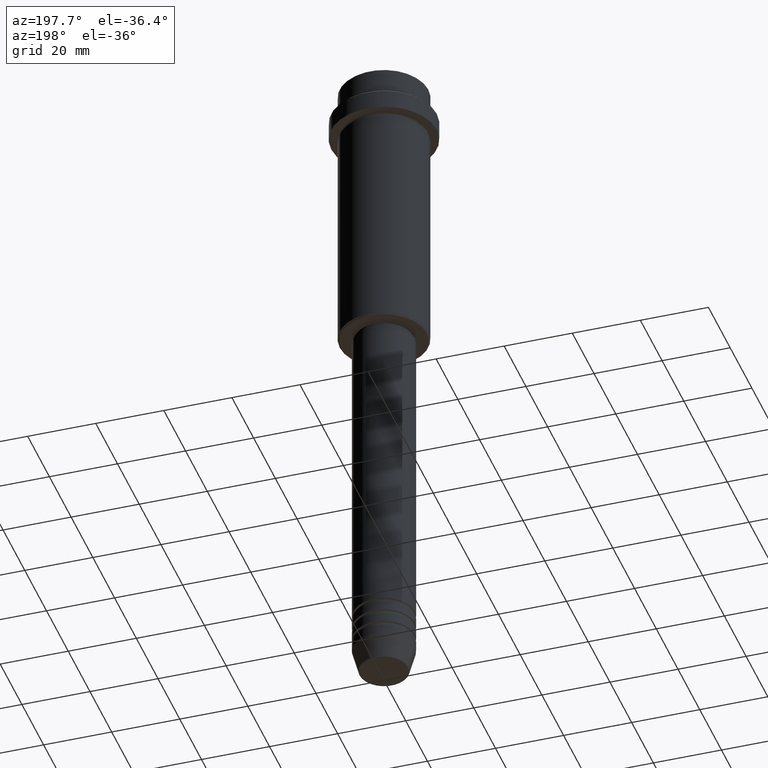
[diagram: clean part render]
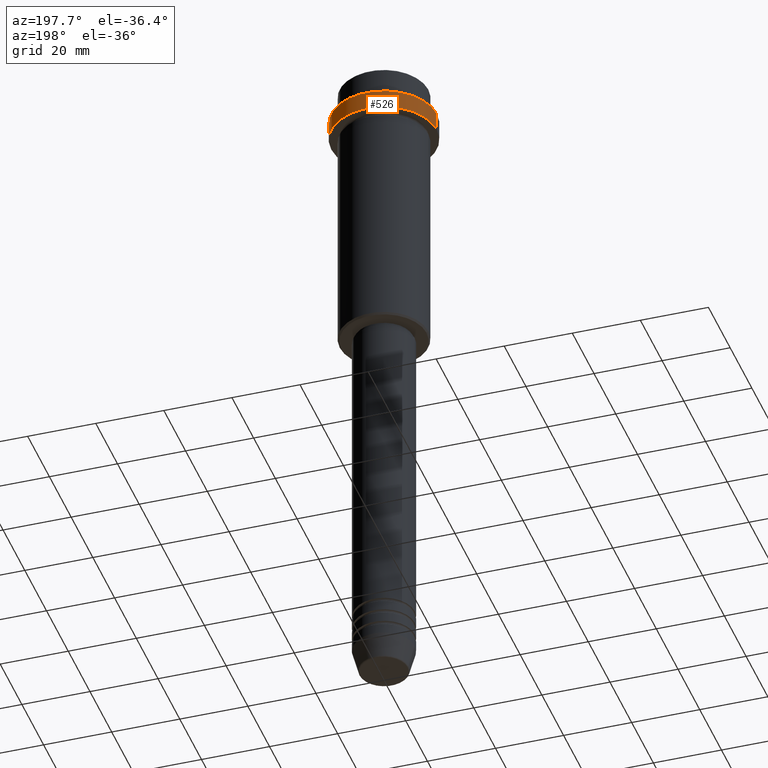
[diagram: same view with one face highlighted and labeled with its STEP entity id]
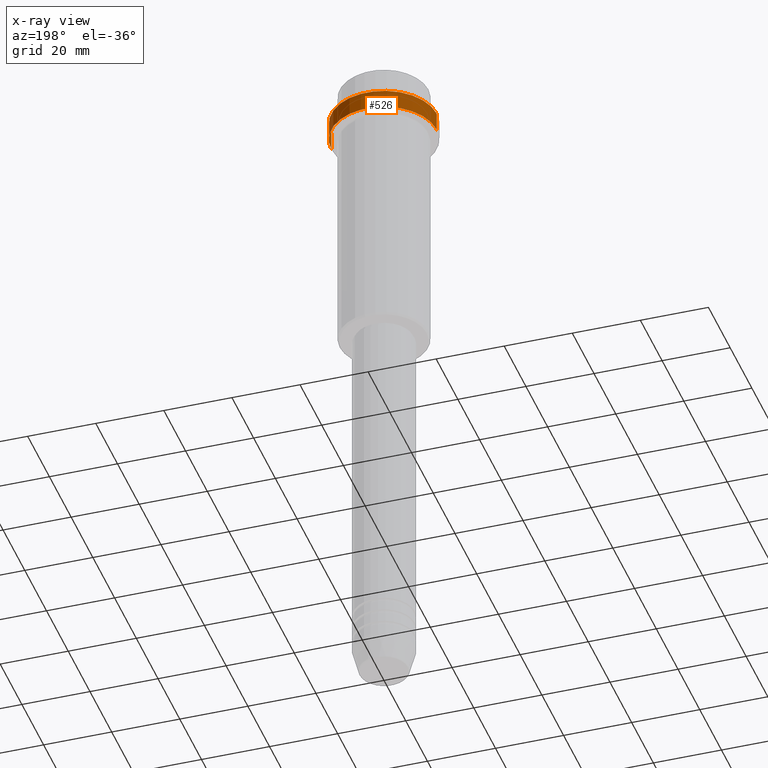
[diagram: x-ray of the same camera — body ghosted, the highlighted face saturated]
A machine part, auxiliary view. The second image highlights one B-rep face of the part: STEP entity #526.
The next image is the same camera in x-ray: the body ghosted, the highlighted face saturated — about 0% of this face is hidden behind the body in this view.
In plain terms, the highlighted cylindrical surface (partial cylindrical patch) has radius 15.5 mm, axis along (-0, -0, 1).
Its self-contained STEP definition (entity closure, byte-faithful):
#2 = ORIENTED_EDGE ( 'NONE', *, *, #785, .T. ) ;
#5 = CIRCLE ( 'NONE', #607, 15.50000000000000000 ) ;
#24 = DIRECTION ( 'NONE',  ( 0.000000000000000000, 0.000000000000000000, -1.000000000000000000 ) ) ;
#26 = FACE_OUTER_BOUND ( 'NONE', #320, .T. ) ;
#61 = EDGE_CURVE ( 'NONE', #737, #1054, #84, .T. ) ;
#77 = DIRECTION ( 'NONE',  ( -0.000000000000000000, -0.000000000000000000, 1.000000000000000000 ) ) ;
#84 = LINE ( 'NONE', #209, #460 ) ;
#209 = CARTESIAN_POINT ( 'NONE',  ( -15.50000000000000000, 1.898202538678397557E-15, 0.000000000000000000 ) ) ;
#211 = VECTOR ( 'NONE', #386, 1000.000000000000000 ) ;
#234 = CYLINDRICAL_SURFACE ( 'NONE', #628, 15.50000000000000000 ) ;
#309 = VERTEX_POINT ( 'NONE', #778 ) ;
#320 = EDGE_LOOP ( 'NONE', ( #2, #532, #942, #1322 ) ) ;
#386 = DIRECTION ( 'NONE',  ( -0.000000000000000000, -0.000000000000000000, 1.000000000000000000 ) ) ;
#411 = DIRECTION ( 'NONE',  ( -0.000000000000000000, -0.000000000000000000, 1.000000000000000000 ) ) ;
#453 = DIRECTION ( 'NONE',  ( 1.000000000000000000, 0.000000000000000000, 0.000000000000000000 ) ) ;
#460 = VECTOR ( 'NONE', #411, 1000.000000000000000 ) ;
#526 = ADVANCED_FACE ( 'NONE', ( #26 ), #234, .T. ) ;
#532 = ORIENTED_EDGE ( 'NONE', *, *, #61, .T. ) ;
#571 = CARTESIAN_POINT ( 'NONE',  ( 0.000000000000000000, 0.000000000000000000, -9.499999999999985789 ) ) ;
#589 = DIRECTION ( 'NONE',  ( -0.000000000000000000, -0.000000000000000000, 1.000000000000000000 ) ) ;
#607 = AXIS2_PLACEMENT_3D ( 'NONE', #571, #24, #1152 ) ;
#628 = AXIS2_PLACEMENT_3D ( 'NONE', #1319, #589, #453 ) ;
#662 = DIRECTION ( 'NONE',  ( 1.000000000000000000, 0.000000000000000000, 0.000000000000000000 ) ) ;
#737 = VERTEX_POINT ( 'NONE', #808 ) ;
#778 = CARTESIAN_POINT ( 'NONE',  ( 15.50000000000000000, 0.000000000000000000, -9.499999999999985789 ) ) ;
#785 = EDGE_CURVE ( 'NONE', #1410, #737, #1244, .T. ) ;
#808 = CARTESIAN_POINT ( 'NONE',  ( -15.50000000000000000, 1.898202538678397557E-15, -15.00000000000000178 ) ) ;
#842 = EDGE_CURVE ( 'NONE', #1410, #309, #949, .T. ) ;
#845 = CARTESIAN_POINT ( 'NONE',  ( 0.000000000000000000, 0.000000000000000000, -15.00000000000000178 ) ) ;
#851 = AXIS2_PLACEMENT_3D ( 'NONE', #845, #77, #662 ) ;
#855 = CARTESIAN_POINT ( 'NONE',  ( -15.50000000000000000, 1.898202538678397557E-15, -9.499999999999985789 ) ) ;
#908 = EDGE_CURVE ( 'NONE', #1054, #309, #5, .T. ) ;
#920 = CARTESIAN_POINT ( 'NONE',  ( 15.50000000000000000, 0.000000000000000000, -15.00000000000000178 ) ) ;
#942 = ORIENTED_EDGE ( 'NONE', *, *, #908, .T. ) ;
#949 = LINE ( 'NONE', #1369, #211 ) ;
#1054 = VERTEX_POINT ( 'NONE', #855 ) ;
#1152 = DIRECTION ( 'NONE',  ( 1.000000000000000000, 0.000000000000000000, 0.000000000000000000 ) ) ;
#1244 = CIRCLE ( 'NONE', #851, 15.50000000000000000 ) ;
#1319 = CARTESIAN_POINT ( 'NONE',  ( 0.000000000000000000, 0.000000000000000000, 0.000000000000000000 ) ) ;
#1322 = ORIENTED_EDGE ( 'NONE', *, *, #842, .F. ) ;
#1369 = CARTESIAN_POINT ( 'NONE',  ( 15.50000000000000000, 0.000000000000000000, 0.000000000000000000 ) ) ;
#1410 = VERTEX_POINT ( 'NONE', #920 ) ;